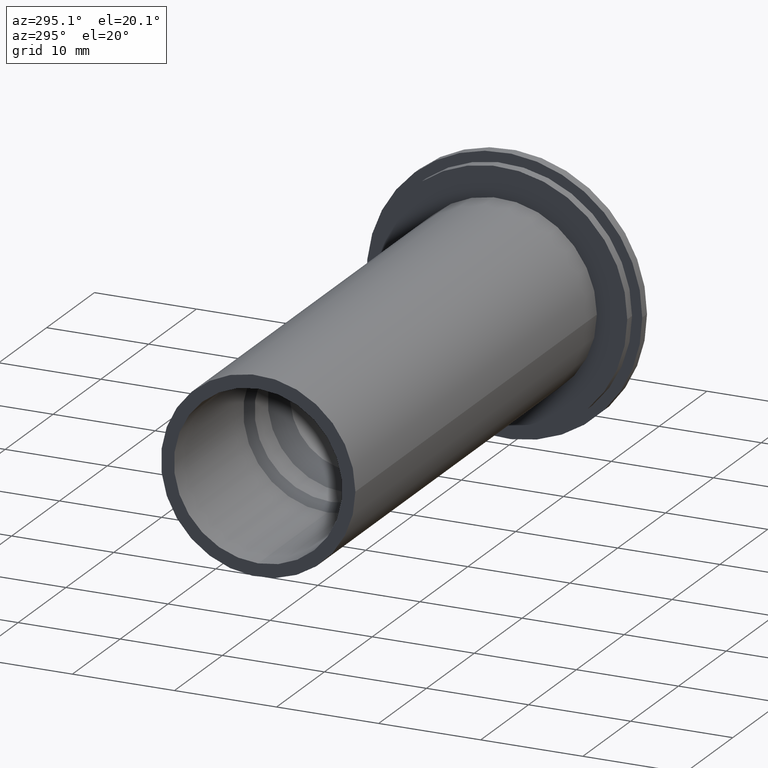
[diagram: clean part render]
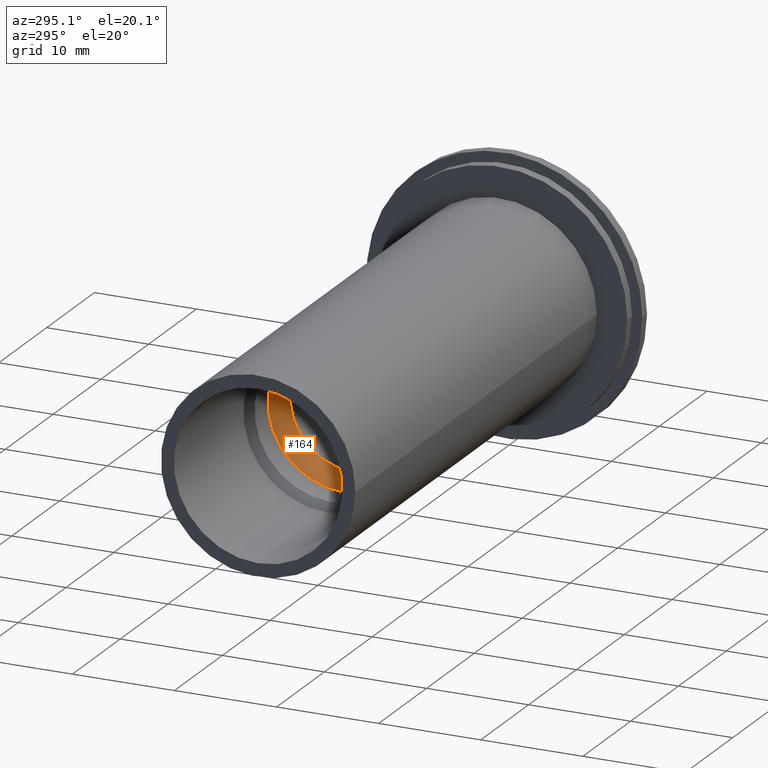
[diagram: same view with one face highlighted and labeled with its STEP entity id]
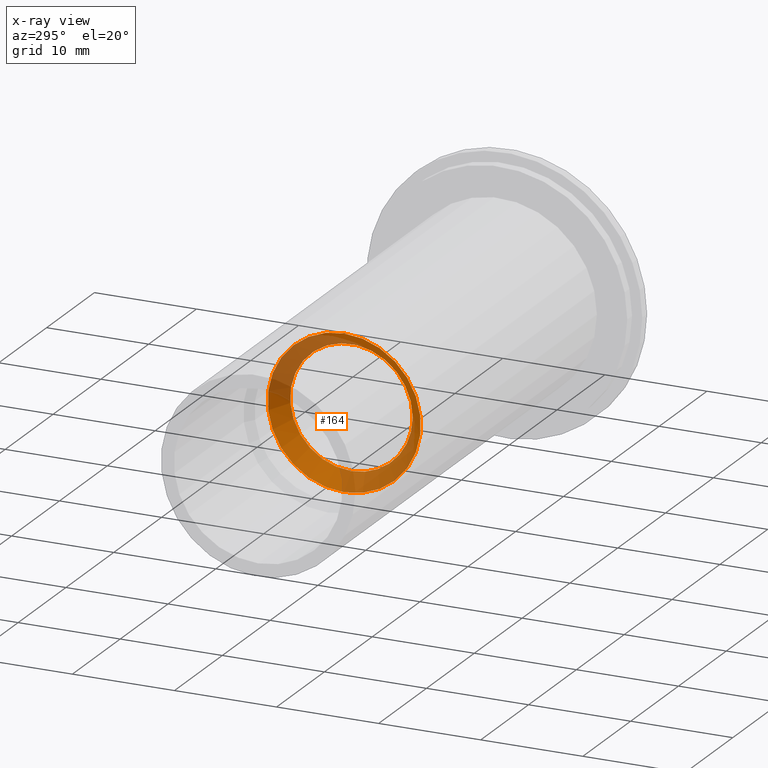
[diagram: x-ray of the same camera — body ghosted, the highlighted face saturated]
A machine part, auxiliary view. The second image highlights one B-rep face of the part: STEP entity #164.
The next image is the same camera in x-ray: the body ghosted, the highlighted face saturated — about 48% of this face is hidden behind the body in this view.
In plain terms, the highlighted conical surface has half-angle 45 deg.
Its self-contained STEP definition (entity closure, byte-faithful):
#29=FACE_OUTER_BOUND('',#41,.T.);
#41=EDGE_LOOP('',(#120,#121,#122,#123,#124));
#57=LINE('',#289,#65);
#65=VECTOR('',#230,3.75);
#73=CIRCLE('',#200,7.5);
#74=CIRCLE('',#201,6.);
#75=CIRCLE('',#202,6.);
#86=VERTEX_POINT('',#286);
#87=VERTEX_POINT('',#288);
#88=VERTEX_POINT('',#290);
#99=EDGE_CURVE('',#86,#86,#73,.T.);
#100=EDGE_CURVE('',#86,#87,#57,.T.);
#101=EDGE_CURVE('',#88,#87,#74,.T.);
#102=EDGE_CURVE('',#87,#88,#75,.T.);
#120=ORIENTED_EDGE('',*,*,#99,.T.);
#121=ORIENTED_EDGE('',*,*,#100,.T.);
#122=ORIENTED_EDGE('',*,*,#101,.F.);
#123=ORIENTED_EDGE('',*,*,#102,.F.);
#124=ORIENTED_EDGE('',*,*,#100,.F.);
#162=CONICAL_SURFACE('',#199,3.75,0.785398163397448);
#164=ADVANCED_FACE('',(#29),#162,.F.);
#199=AXIS2_PLACEMENT_3D('',#285,#226,#227);
#200=AXIS2_PLACEMENT_3D('',#287,#228,#229);
#201=AXIS2_PLACEMENT_3D('',#291,#231,#232);
#202=AXIS2_PLACEMENT_3D('',#292,#233,#234);
#226=DIRECTION('center_axis',(-1.,0.,0.));
#227=DIRECTION('ref_axis',(0.,0.,1.));
#228=DIRECTION('center_axis',(-1.,0.,0.));
#229=DIRECTION('ref_axis',(0.,0.,1.));
#230=DIRECTION('',(0.707106781186548,8.65956056235493E-17,0.707106781186547));
#231=DIRECTION('center_axis',(-1.,0.,0.));
#232=DIRECTION('ref_axis',(0.,1.,0.));
#233=DIRECTION('center_axis',(-1.,0.,0.));
#234=DIRECTION('ref_axis',(0.,1.,0.));
#285=CARTESIAN_POINT('Origin',(-30.75,0.,0.));
#286=CARTESIAN_POINT('',(-34.5,-9.18485099360515E-16,-7.5));
#287=CARTESIAN_POINT('Origin',(-34.5,0.,0.));
#288=CARTESIAN_POINT('',(-33.,-7.34788079488412E-16,-6.));
#289=CARTESIAN_POINT('',(-30.75,-4.59242549680257E-16,-3.75));
#290=CARTESIAN_POINT('',(-33.,-6.,7.34788079488412E-16));
#291=CARTESIAN_POINT('Origin',(-33.,0.,0.));
#292=CARTESIAN_POINT('Origin',(-33.,0.,0.));